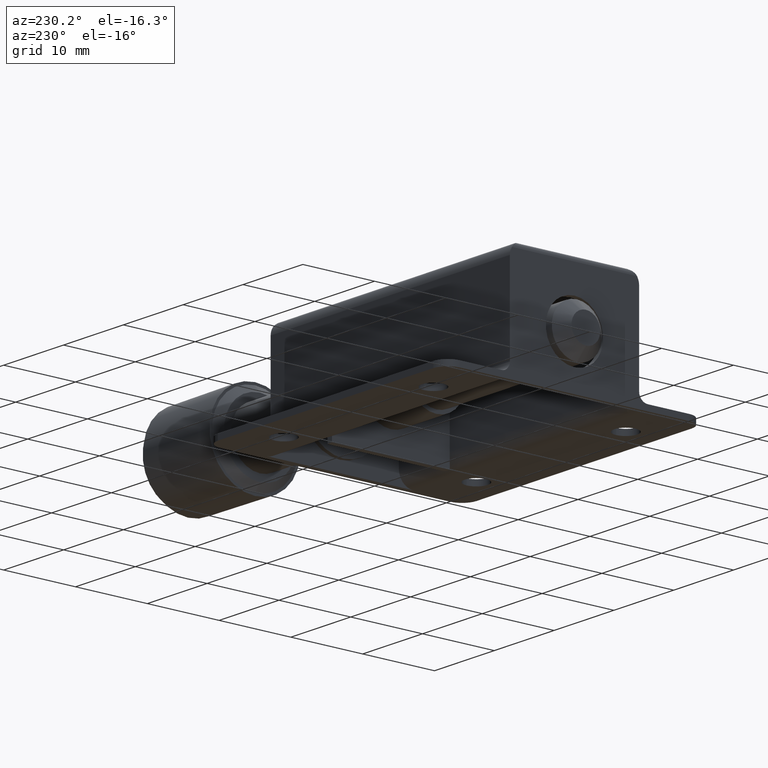
[diagram: clean part render]
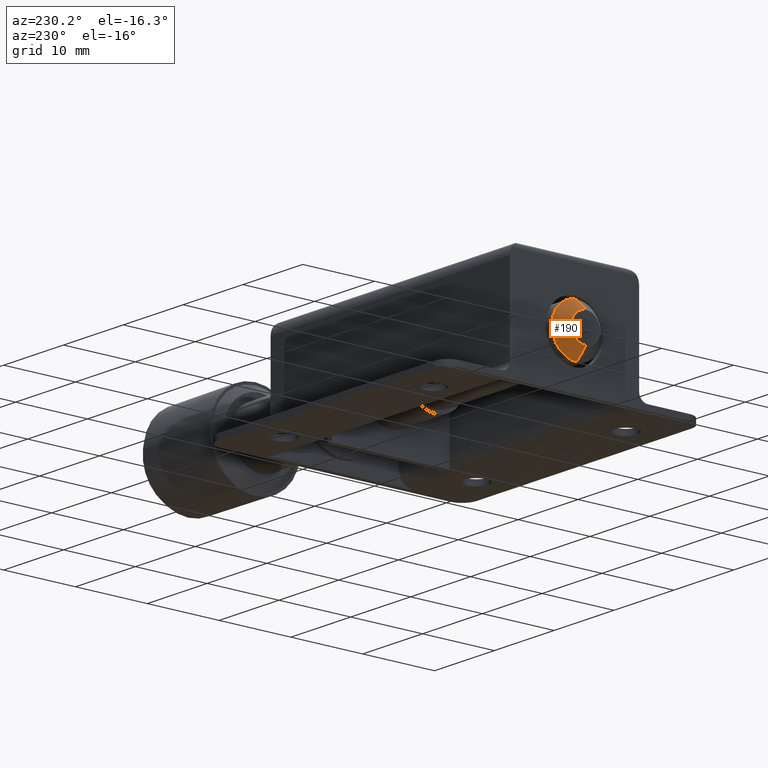
[diagram: same view with one face highlighted and labeled with its STEP entity id]
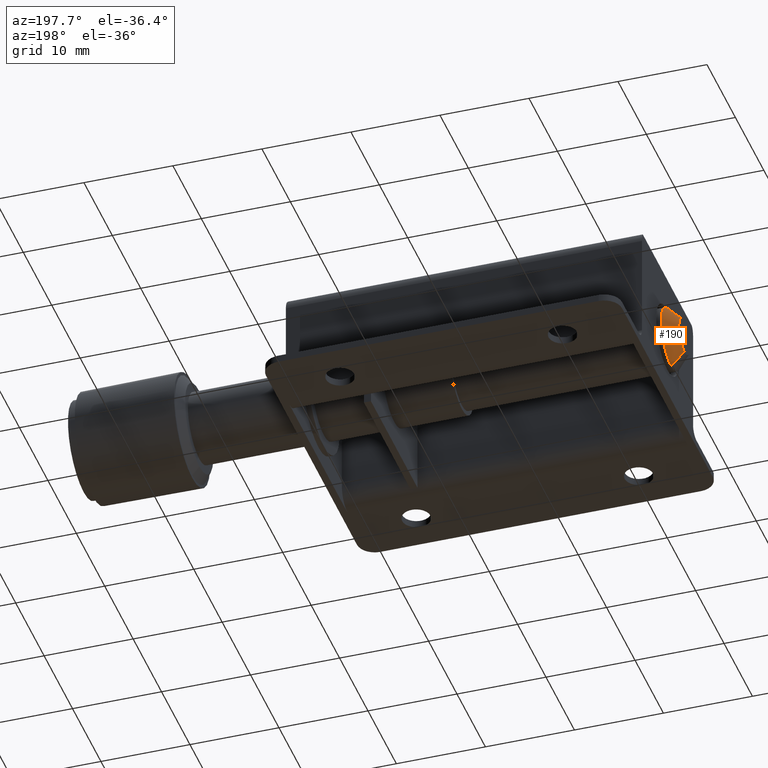
[diagram: same view with one face highlighted and labeled with its STEP entity id]
A machine part, auxiliary view. The second image highlights one B-rep face of the part: STEP entity #190.
A second angle (auxiliary view) of the same face is appended — the face is thin or edge-on in the first view.
In plain terms, the highlighted face is a freeform B-spline surface patch.
Its self-contained STEP definition (entity closure, byte-faithful):
#190=ADVANCED_FACE('',(#1006),#1005,.T.);
#1005=( BOUNDED_SURFACE() B_SPLINE_SURFACE( 2,1,((#1597,#1598),(#1599,#1600),(#1601,#1602),(#1603,#1604),(#1605,#1606)), .UNSPECIFIED.,.F.,.F.,.F.) B_SPLINE_SURFACE_WITH_KNOTS((3,2,3),(2,2),(0.00000000000E+00,5.00000000000E-01,1.00000000000E+00),(0.00000000000E+00,1.00000000000E+00), .UNSPECIFIED. ) GEOMETRIC_REPRESENTATION_ITEM() RATIONAL_B_SPLINE_SURFACE(((1.00000000000E+00,1.00000000000E+00),(7.07106781187E-01,7.07106781187E-01),(1.00000000000E+00,1.00000000000E+00),(7.07106781187E-01,7.07106781187E-01),(1.00000000000E+00,1.00000000000E+00))) REPRESENTATION_ITEM('') SURFACE() );
#1006=FACE_OUTER_BOUND('',#1607,.T.);
#1597=CARTESIAN_POINT('',(-9.40000000000E+00,2.44929359829E-16,4.20000000000E+00));
#1598=CARTESIAN_POINT('',(-7.90000000000E+00,4.28626379702E-16,2.70000000000E+00));
#1599=CARTESIAN_POINT('',(-9.40000000000E+00,2.00000000000E+00,4.20000000000E+00));
#1600=CARTESIAN_POINT('',(-7.90000000000E+00,3.50000000000E+00,2.70000000000E+00));
#1601=CARTESIAN_POINT('',(-9.40000000000E+00,2.00000000000E+00,6.20000000000E+00));
#1602=CARTESIAN_POINT('',(-7.90000000000E+00,3.50000000000E+00,6.20000000000E+00));
#1603=CARTESIAN_POINT('',(-9.40000000000E+00,2.00000000000E+00,8.20000000000E+00));
#1604=CARTESIAN_POINT('',(-7.90000000000E+00,3.50000000000E+00,9.70000000000E+00));
#1605=CARTESIAN_POINT('',(-9.40000000000E+00,4.93038065763E-32,8.20000000000E+00));
#1606=CARTESIAN_POINT('',(-7.90000000000E+00,0.00000000000E+00,9.70000000000E+00));
#1607=EDGE_LOOP('',(#2090,#2091,#2092,#2093));
#2090=ORIENTED_EDGE('',*,*,#2323,.F.);
#2091=ORIENTED_EDGE('',*,*,#2352,.T.);
#2092=ORIENTED_EDGE('',*,*,#2354,.T.);
#2093=ORIENTED_EDGE('',*,*,#2353,.F.);
#2323=EDGE_CURVE('',#3571,#3572,#3573,.T.);
#2352=EDGE_CURVE('',#3571,#3766,#3773,.T.);
#2353=EDGE_CURVE('',#3572,#3765,#3779,.T.);
#2354=EDGE_CURVE('',#3766,#3765,#3785,.T.);
#3571=VERTEX_POINT('',#4620);
#3572=VERTEX_POINT('',#4621);
#3573=CIRCLE('',#4625,2.00000000000E+00);
#3765=VERTEX_POINT('',#4754);
#3766=VERTEX_POINT('',#4755);
#3773=(BOUNDED_CURVE() B_SPLINE_CURVE(1,(#4760,#4761),.UNSPECIFIED.,.F.,.F.) B_SPLINE_CURVE_WITH_KNOTS((2,2),(0.00000000000E+00,1.00000000000E+00),.UNSPECIFIED.) CURVE() GEOMETRIC_REPRESENTATION_ITEM() RATIONAL_B_SPLINE_CURVE((1.00000000000E+00,1.00000000000E+00)) REPRESENTATION_ITEM('') );
#3779=(BOUNDED_CURVE() B_SPLINE_CURVE(1,(#4762,#4763),.UNSPECIFIED.,.F.,.F.) B_SPLINE_CURVE_WITH_KNOTS((2,2),(0.00000000000E+00,1.00000000000E+00),.UNSPECIFIED.) CURVE() GEOMETRIC_REPRESENTATION_ITEM() RATIONAL_B_SPLINE_CURVE((7.50000000000E-01,7.50000000000E-01)) REPRESENTATION_ITEM('') );
#3785=CIRCLE('',#4767,3.50000000000E+00);
#4620=CARTESIAN_POINT('',(-9.40000000000E+00,0.00000000000E+00,8.20000000000E+00));
#4621=CARTESIAN_POINT('',(-9.40000000000E+00,2.22044604925E-16,4.20000000000E+00));
#4622=CARTESIAN_POINT('',(-9.40000000000E+00,0.00000000000E+00,6.20000000000E+00));
#4623=DIRECTION('',(-1.00000000000E+00,0.00000000000E+00,0.00000000000E+00));
#4624=DIRECTION('',(0.00000000000E+00,-1.22460635382E-16,1.00000000000E+00));
#4625=AXIS2_PLACEMENT_3D('',#4622,#4623,#4624);
#4754=CARTESIAN_POINT('',(-7.90000000000E+00,1.48029736617E-16,2.70000000000E+00));
#4755=CARTESIAN_POINT('',(-7.90000000000E+00,0.00000000000E+00,9.70000000000E+00));
#4760=CARTESIAN_POINT('',(-9.40000000000E+00,-4.89842541529E-16,8.20000000000E+00));
#4761=CARTESIAN_POINT('',(-7.90000000000E+00,-8.57224447676E-16,9.70000000000E+00));
#4762=CARTESIAN_POINT('',(-9.40000000000E+00,5.18104078158E-16,4.20000000000E+00));
#4763=CARTESIAN_POINT('',(-7.90000000000E+00,8.88178419700E-16,2.70000000000E+00));
#4764=CARTESIAN_POINT('',(-7.90000000000E+00,0.00000000000E+00,6.20000000000E+00));
#4765=DIRECTION('',(-1.00000000000E+00,0.00000000000E+00,0.00000000000E+00));
#4766=DIRECTION('',(0.00000000000E+00,-1.22460635382E-16,1.00000000000E+00));
#4767=AXIS2_PLACEMENT_3D('',#4764,#4765,#4766);